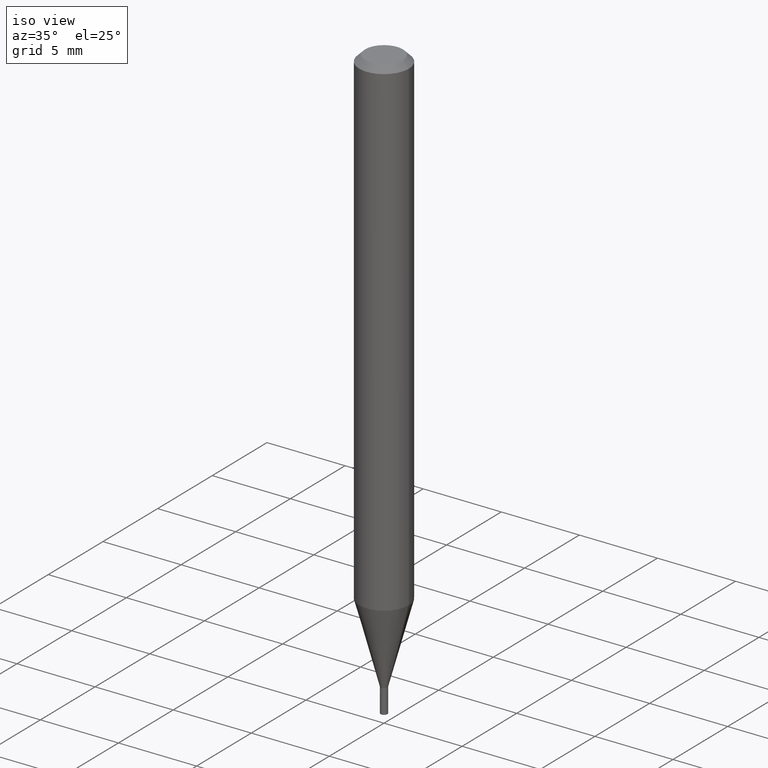
[diagram: clean part render]
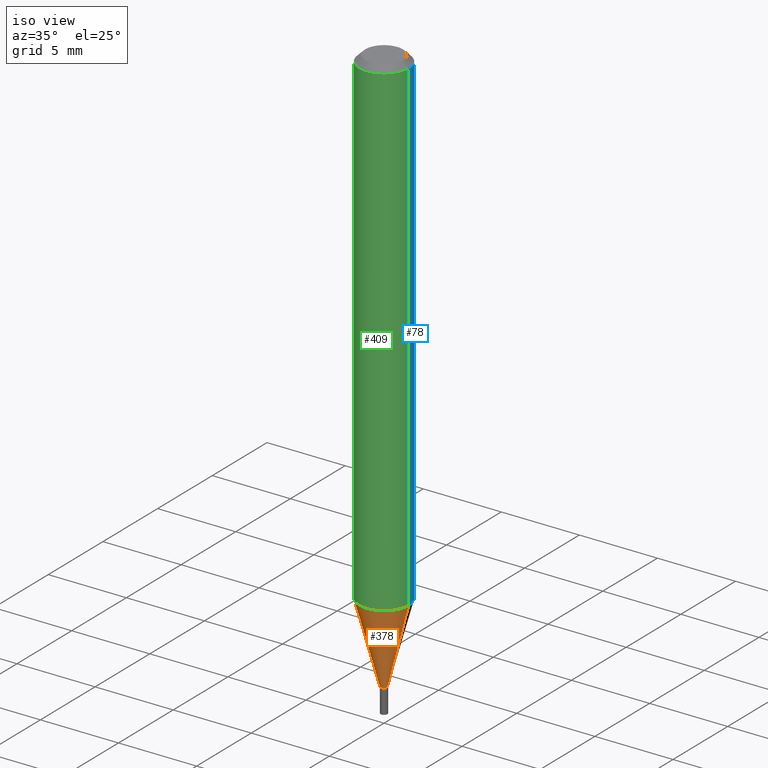
[diagram: same view with three faces highlighted in distinct colors, each labeled with its STEP entity id]
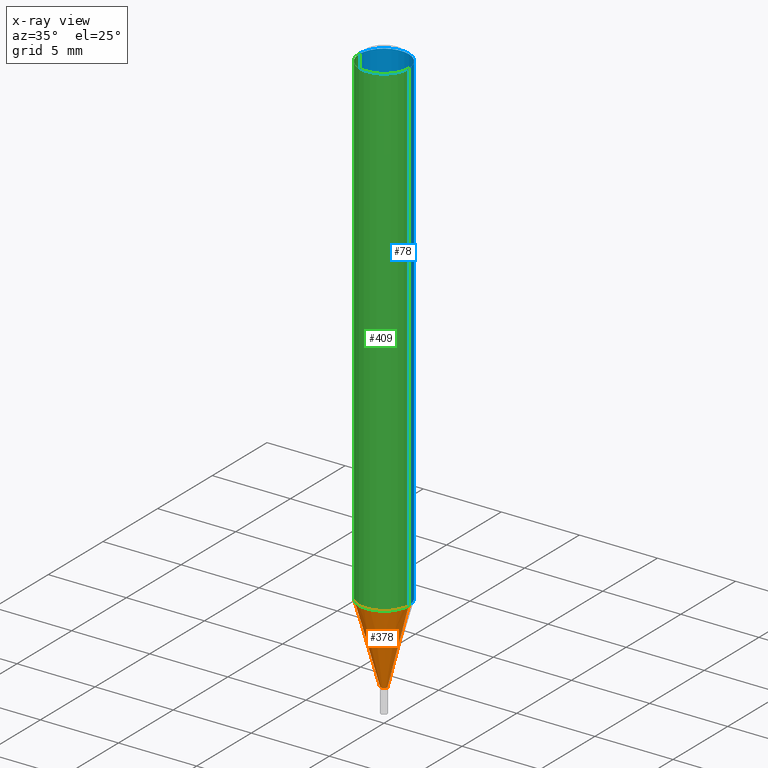
[diagram: x-ray of the same camera — body ghosted, the three highlighted faces saturated]
A machine part, iso view with three faces highlighted in distinct colors.
The next image is the same camera in x-ray (body ghosted, the three faces saturated) — at least one of them is partly hidden behind the body in this view.
Their STEP definitions:

[orange] entity #378 — the highlighted conical surface has half-angle 15 deg.
#4 = CARTESIAN_POINT ( 'NONE',  ( -0.06249999999999999306, -3.876511606232199217E-15, -1.237469256391281025 ) ) ;
#26 = CARTESIAN_POINT ( 'NONE',  ( -0.008499999999999922548, -4.420178560143938947E-15, -1.439000000000000057 ) ) ;
#62 = EDGE_CURVE ( 'NONE', #165, #371, #174, .T. ) ;
#65 = VECTOR ( 'NONE', #145, 39.37007874015747433 ) ;
#68 = DIRECTION ( 'NONE',  ( -2.445468806185136597E-29, 3.491481338843145583E-15, 1.000000000000000000 ) ) ;
#104 = CARTESIAN_POINT ( 'NONE',  ( 0.008499999999999922548, -5.083596829355619552E-15, -1.439000000000000057 ) ) ;
#124 = AXIS2_PLACEMENT_3D ( 'NONE', #380, #68, #182 ) ;
#145 = DIRECTION ( 'NONE',  ( 0.2588190451025214611, 1.565188264969621573E-15, 0.9659258262890682012 ) ) ;
#152 = EDGE_LOOP ( 'NONE', ( #208, #199, #250, #451 ) ) ;
#154 = DIRECTION ( 'NONE',  ( -2.445468806185136597E-29, 3.491481338843145583E-15, 1.000000000000000000 ) ) ;
#165 = VERTEX_POINT ( 'NONE', #352 ) ;
#166 = VERTEX_POINT ( 'NONE', #26 ) ;
#174 = LINE ( 'NONE', #104, #65 ) ;
#182 = DIRECTION ( 'NONE',  ( 1.000000000000000000, -6.982962677686225690E-15, 0.000000000000000000 ) ) ;
#183 = CARTESIAN_POINT ( 'NONE',  ( 0.06249999999999999306, -4.757035983437653502E-15, -1.237469256391281025 ) ) ;
#185 = EDGE_CURVE ( 'NONE', #166, #165, #396, .T. ) ;
#186 = VERTEX_POINT ( 'NONE', #4 ) ;
#192 = LINE ( 'NONE', #252, #336 ) ;
#194 = AXIS2_PLACEMENT_3D ( 'NONE', #260, #154, #389 ) ;
#199 = ORIENTED_EDGE ( 'NONE', *, *, #185, .T. ) ;
#208 = ORIENTED_EDGE ( 'NONE', *, *, #279, .F. ) ;
#221 = EDGE_CURVE ( 'NONE', #186, #371, #268, .T. ) ;
#248 = DIRECTION ( 'NONE',  ( -2.445468806185136597E-29, 3.491481338843145583E-15, 1.000000000000000000 ) ) ;
#250 = ORIENTED_EDGE ( 'NONE', *, *, #62, .T. ) ;
#252 = CARTESIAN_POINT ( 'NONE',  ( -0.008499999999999922548, -4.963845514055678678E-15, -1.439000000000000057 ) ) ;
#260 = CARTESIAN_POINT ( 'NONE',  ( 3.519029612100411702E-29, -5.024241646595286853E-15, -1.439000000000000057 ) ) ;
#268 = CIRCLE ( 'NONE', #458, 0.06250000000000000000 ) ;
#279 = EDGE_CURVE ( 'NONE', #166, #186, #192, .T. ) ;
#286 = FACE_OUTER_BOUND ( 'NONE', #152, .T. ) ;
#324 = CONICAL_SURFACE ( 'NONE', #194, 0.008499999999999922548, 0.2617993877991501295 ) ;
#336 = VECTOR ( 'NONE', #459, 39.37007874015747433 ) ;
#352 = CARTESIAN_POINT ( 'NONE',  ( 0.008499999999999922548, -5.083596829355619552E-15, -1.439000000000000057 ) ) ;
#371 = VERTEX_POINT ( 'NONE', #183 ) ;
#378 = ADVANCED_FACE ( 'NONE', ( #286 ), #324, .T. ) ;
#380 = CARTESIAN_POINT ( 'NONE',  ( 3.519029612100411702E-29, -5.024241646595286853E-15, -1.439000000000000057 ) ) ;
#389 = DIRECTION ( 'NONE',  ( 1.000000000000000000, -6.982962677686225690E-15, 0.000000000000000000 ) ) ;
#396 = CIRCLE ( 'NONE', #124, 0.008499999999999922548 ) ;
#399 = CARTESIAN_POINT ( 'NONE',  ( 3.026192465117994899E-29, -4.320600816082261833E-15, -1.237469256391281025 ) ) ;
#410 = DIRECTION ( 'NONE',  ( 1.000000000000000000, -6.982962677686262766E-15, 0.000000000000000000 ) ) ;
#451 = ORIENTED_EDGE ( 'NONE', *, *, #221, .F. ) ;
#458 = AXIS2_PLACEMENT_3D ( 'NONE', #399, #248, #410 ) ;
#459 = DIRECTION ( 'NONE',  ( -0.2588190451025214611, 5.211531920934551042E-15, 0.9659258262890682012 ) ) ;

[blue] entity #78 — the highlighted cylindrical surface (edge-blend (fillet) strip) has radius 1.5875 mm, axis along (-0, 0, 1).
#3 = DIRECTION ( 'NONE',  ( 1.000000000000000000, -6.982962677686266711E-15, 4.876176775795935793E-29 ) ) ;
#4 = CARTESIAN_POINT ( 'NONE',  ( -0.06249999999999999306, -3.876511606232199217E-15, -1.237469256391281025 ) ) ;
#12 = EDGE_LOOP ( 'NONE', ( #376, #411, #180, #100 ) ) ;
#16 = EDGE_CURVE ( 'NONE', #371, #186, #267, .T. ) ;
#27 = CARTESIAN_POINT ( 'NONE',  ( 0.06250000000000000000, -4.888073874380388472E-16, -0.01499999999999999944 ) ) ;
#45 = CYLINDRICAL_SURFACE ( 'NONE', #107, 0.06250000000000000000 ) ;
#50 = CARTESIAN_POINT ( 'NONE',  ( 3.668203209277705088E-31, -5.237222008264718399E-17, -0.01499999999999999944 ) ) ;
#60 = DIRECTION ( 'NONE',  ( 1.000000000000000000, -6.982962677686262766E-15, 0.000000000000000000 ) ) ;
#71 = CIRCLE ( 'NONE', #282, 0.06250000000000000000 ) ;
#78 = ADVANCED_FACE ( 'NONE', ( #398 ), #45, .T. ) ;
#88 = DIRECTION ( 'NONE',  ( -2.445468806185136597E-29, 3.491481338843145583E-15, 1.000000000000000000 ) ) ;
#98 = CARTESIAN_POINT ( 'NONE',  ( -0.06250000000000000000, 4.440892098500626162E-16, -3.074334431409316114E-30 ) ) ;
#100 = ORIENTED_EDGE ( 'NONE', *, *, #360, .F. ) ;
#107 = AXIS2_PLACEMENT_3D ( 'NONE', #325, #394, #3 ) ;
#108 = CARTESIAN_POINT ( 'NONE',  ( 0.06250000000000000000, -4.364351673553916694E-16, 3.047610484872459871E-30 ) ) ;
#133 = CARTESIAN_POINT ( 'NONE',  ( 3.026192465117994899E-29, -4.320600816082261833E-15, -1.237469256391281025 ) ) ;
#171 = VECTOR ( 'NONE', #217, 39.37007874015748143 ) ;
#180 = ORIENTED_EDGE ( 'NONE', *, *, #311, .F. ) ;
#183 = CARTESIAN_POINT ( 'NONE',  ( 0.06249999999999999306, -4.757035983437653502E-15, -1.237469256391281025 ) ) ;
#186 = VERTEX_POINT ( 'NONE', #4 ) ;
#202 = CARTESIAN_POINT ( 'NONE',  ( -0.06250000000000000000, -1.742397308232391840E-15, -0.01499999999999999944 ) ) ;
#206 = DIRECTION ( 'NONE',  ( -2.445468806185136877E-29, 3.491481338843145188E-15, 1.000000000000000000 ) ) ;
#217 = DIRECTION ( 'NONE',  ( -2.445468806185136877E-29, 3.491481338843145188E-15, 1.000000000000000000 ) ) ;
#223 = EDGE_CURVE ( 'NONE', #186, #317, #374, .T. ) ;
#241 = DIRECTION ( 'NONE',  ( 1.000000000000000000, -6.982962677686266711E-15, 0.000000000000000000 ) ) ;
#267 = CIRCLE ( 'NONE', #299, 0.06250000000000000000 ) ;
#282 = AXIS2_PLACEMENT_3D ( 'NONE', #50, #88, #241 ) ;
#289 = LINE ( 'NONE', #108, #171 ) ;
#299 = AXIS2_PLACEMENT_3D ( 'NONE', #133, #368, #60 ) ;
#311 = EDGE_CURVE ( 'NONE', #350, #317, #71, .T. ) ;
#314 = VECTOR ( 'NONE', #206, 39.37007874015748143 ) ;
#317 = VERTEX_POINT ( 'NONE', #202 ) ;
#325 = CARTESIAN_POINT ( 'NONE',  ( 0.000000000000000000, 0.000000000000000000, 0.000000000000000000 ) ) ;
#350 = VERTEX_POINT ( 'NONE', #27 ) ;
#360 = EDGE_CURVE ( 'NONE', #371, #350, #289, .T. ) ;
#368 = DIRECTION ( 'NONE',  ( -2.445468806185136597E-29, 3.491481338843145583E-15, 1.000000000000000000 ) ) ;
#371 = VERTEX_POINT ( 'NONE', #183 ) ;
#374 = LINE ( 'NONE', #98, #314 ) ;
#376 = ORIENTED_EDGE ( 'NONE', *, *, #16, .T. ) ;
#394 = DIRECTION ( 'NONE',  ( -2.445468806185136597E-29, 3.491481338843145583E-15, 1.000000000000000000 ) ) ;
#398 = FACE_OUTER_BOUND ( 'NONE', #12, .T. ) ;
#411 = ORIENTED_EDGE ( 'NONE', *, *, #223, .T. ) ;

[green] entity #409 — the highlighted cylindrical surface (edge-blend (fillet) strip) has radius 1.5875 mm, axis along (-0, 0, 1).
#4 = CARTESIAN_POINT ( 'NONE',  ( -0.06249999999999999306, -3.876511606232199217E-15, -1.237469256391281025 ) ) ;
#10 = EDGE_CURVE ( 'NONE', #317, #350, #342, .T. ) ;
#27 = CARTESIAN_POINT ( 'NONE',  ( 0.06250000000000000000, -4.888073874380388472E-16, -0.01499999999999999944 ) ) ;
#98 = CARTESIAN_POINT ( 'NONE',  ( -0.06250000000000000000, 4.440892098500626162E-16, -3.074334431409316114E-30 ) ) ;
#99 = FACE_OUTER_BOUND ( 'NONE', #334, .T. ) ;
#108 = CARTESIAN_POINT ( 'NONE',  ( 0.06250000000000000000, -4.364351673553916694E-16, 3.047610484872459871E-30 ) ) ;
#118 = DIRECTION ( 'NONE',  ( 1.000000000000000000, -6.982962677686266711E-15, 0.000000000000000000 ) ) ;
#134 = AXIS2_PLACEMENT_3D ( 'NONE', #257, #310, #351 ) ;
#135 = ORIENTED_EDGE ( 'NONE', *, *, #221, .T. ) ;
#171 = VECTOR ( 'NONE', #217, 39.37007874015748143 ) ;
#183 = CARTESIAN_POINT ( 'NONE',  ( 0.06249999999999999306, -4.757035983437653502E-15, -1.237469256391281025 ) ) ;
#186 = VERTEX_POINT ( 'NONE', #4 ) ;
#202 = CARTESIAN_POINT ( 'NONE',  ( -0.06250000000000000000, -1.742397308232391840E-15, -0.01499999999999999944 ) ) ;
#206 = DIRECTION ( 'NONE',  ( -2.445468806185136877E-29, 3.491481338843145188E-15, 1.000000000000000000 ) ) ;
#217 = DIRECTION ( 'NONE',  ( -2.445468806185136877E-29, 3.491481338843145188E-15, 1.000000000000000000 ) ) ;
#221 = EDGE_CURVE ( 'NONE', #186, #371, #268, .T. ) ;
#223 = EDGE_CURVE ( 'NONE', #186, #317, #374, .T. ) ;
#240 = ORIENTED_EDGE ( 'NONE', *, *, #360, .T. ) ;
#248 = DIRECTION ( 'NONE',  ( -2.445468806185136597E-29, 3.491481338843145583E-15, 1.000000000000000000 ) ) ;
#257 = CARTESIAN_POINT ( 'NONE',  ( 0.000000000000000000, 0.000000000000000000, 0.000000000000000000 ) ) ;
#268 = CIRCLE ( 'NONE', #458, 0.06250000000000000000 ) ;
#283 = ORIENTED_EDGE ( 'NONE', *, *, #223, .F. ) ;
#289 = LINE ( 'NONE', #108, #171 ) ;
#307 = ORIENTED_EDGE ( 'NONE', *, *, #10, .F. ) ;
#310 = DIRECTION ( 'NONE',  ( -2.445468806185136597E-29, 3.491481338843145583E-15, 1.000000000000000000 ) ) ;
#314 = VECTOR ( 'NONE', #206, 39.37007874015748143 ) ;
#315 = CYLINDRICAL_SURFACE ( 'NONE', #134, 0.06250000000000000000 ) ;
#317 = VERTEX_POINT ( 'NONE', #202 ) ;
#334 = EDGE_LOOP ( 'NONE', ( #283, #135, #240, #307 ) ) ;
#342 = CIRCLE ( 'NONE', #354, 0.06250000000000000000 ) ;
#350 = VERTEX_POINT ( 'NONE', #27 ) ;
#351 = DIRECTION ( 'NONE',  ( 1.000000000000000000, -6.982962677686266711E-15, 4.876176775795935793E-29 ) ) ;
#354 = AXIS2_PLACEMENT_3D ( 'NONE', #438, #430, #118 ) ;
#360 = EDGE_CURVE ( 'NONE', #371, #350, #289, .T. ) ;
#371 = VERTEX_POINT ( 'NONE', #183 ) ;
#374 = LINE ( 'NONE', #98, #314 ) ;
#399 = CARTESIAN_POINT ( 'NONE',  ( 3.026192465117994899E-29, -4.320600816082261833E-15, -1.237469256391281025 ) ) ;
#409 = ADVANCED_FACE ( 'NONE', ( #99 ), #315, .T. ) ;
#410 = DIRECTION ( 'NONE',  ( 1.000000000000000000, -6.982962677686262766E-15, 0.000000000000000000 ) ) ;
#430 = DIRECTION ( 'NONE',  ( -2.445468806185136597E-29, 3.491481338843145583E-15, 1.000000000000000000 ) ) ;
#438 = CARTESIAN_POINT ( 'NONE',  ( 3.668203209277705088E-31, -5.237222008264718399E-17, -0.01499999999999999944 ) ) ;
#458 = AXIS2_PLACEMENT_3D ( 'NONE', #399, #248, #410 ) ;